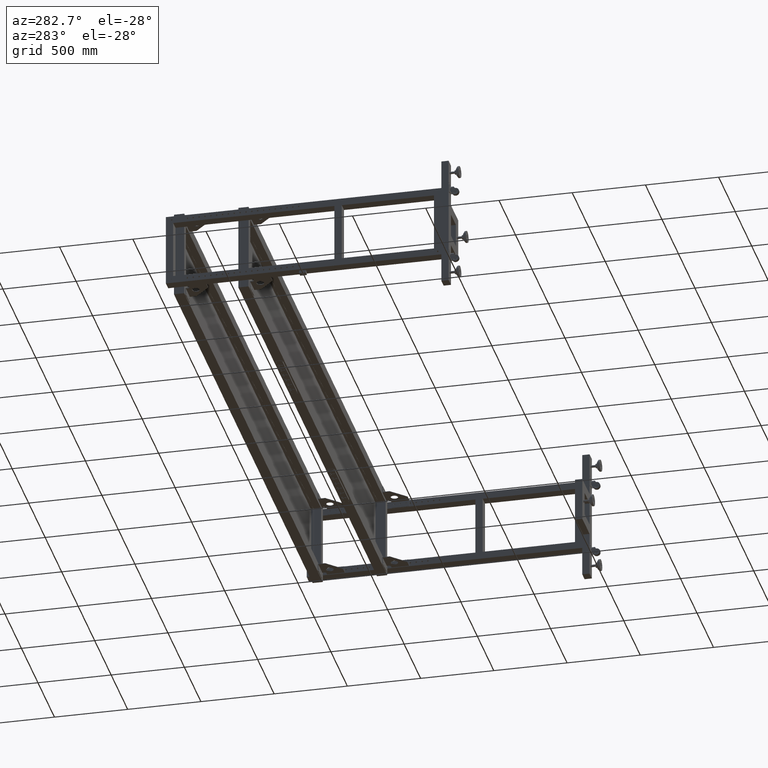
[diagram: clean part render]
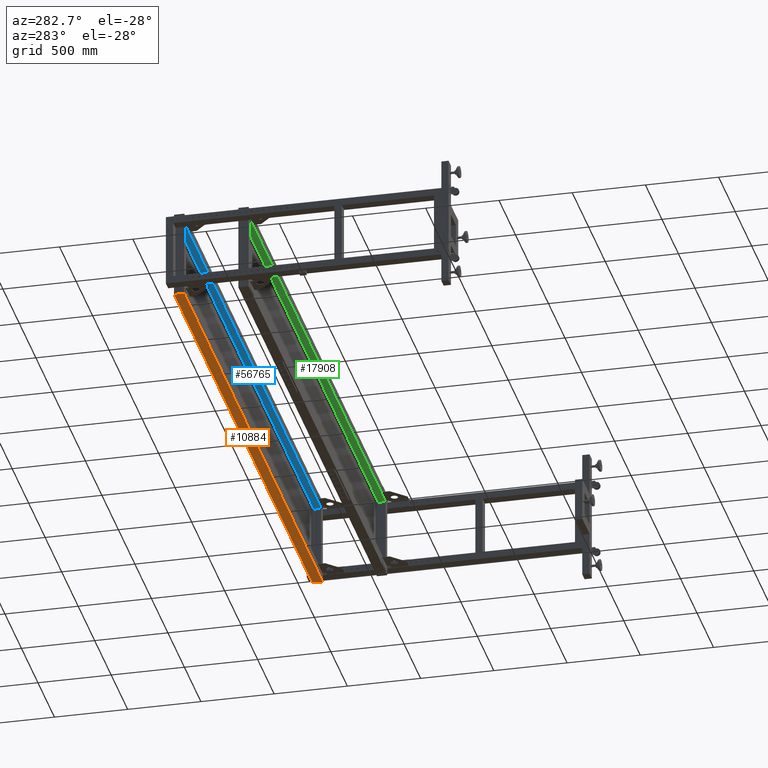
[diagram: same view with three faces highlighted in distinct colors, each labeled with its STEP entity id]
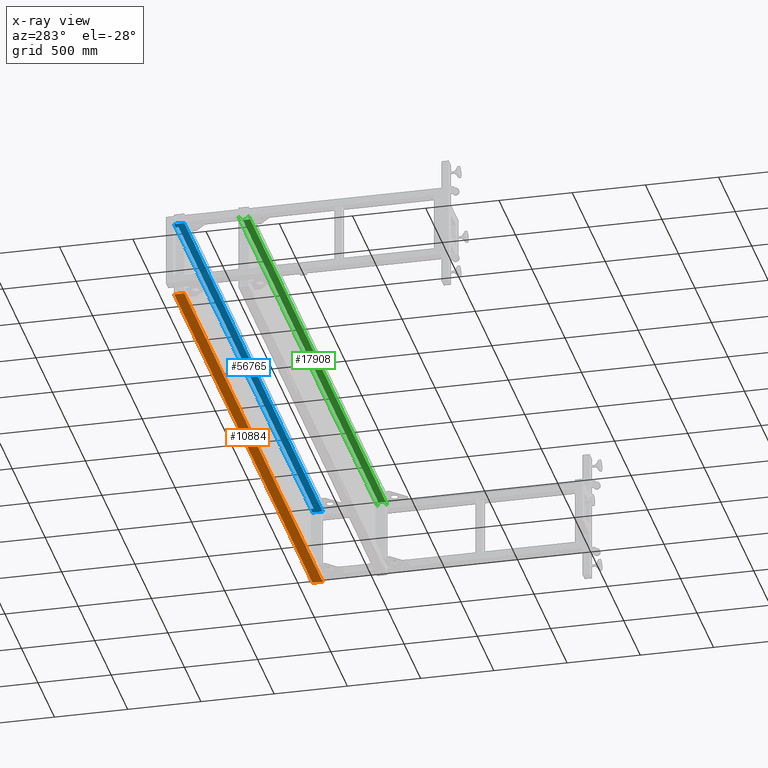
[diagram: x-ray of the same camera — body ghosted, the three highlighted faces saturated]
A machine part, auxiliary view with three faces highlighted in distinct colors.
The next image is the same camera in x-ray (body ghosted, the three faces saturated) — at least one of them is partly hidden behind the body in this view.
Their STEP definitions:

[orange] entity #10884 — the highlighted planar face has unit normal (-0, -0, 1).
#315 = ORIENTED_EDGE ( 'NONE', *, *, #31586, .T. ) ;
#1414 = VERTEX_POINT ( 'NONE', #17233 ) ;
#2426 = CARTESIAN_POINT ( 'NONE',  ( -266.1724874371840883, 926.9410804020149044, -299.9999999999991473 ) ) ;
#3932 = ORIENTED_EDGE ( 'NONE', *, *, #64072, .F. ) ;
#4368 = VECTOR ( 'NONE', #27092, 1000.000000000000000 ) ;
#8116 = ORIENTED_EDGE ( 'NONE', *, *, #64525, .F. ) ;
#10884 = ADVANCED_FACE ( 'NONE', ( #11968 ), #17709, .F. ) ;
#11968 = FACE_OUTER_BOUND ( 'NONE', #68940, .T. ) ;
#15548 = DIRECTION ( 'NONE',  ( 3.450989802914125775E-16, -1.000000000000000000, -3.603491776919587486E-15 ) ) ;
#17233 = CARTESIAN_POINT ( 'NONE',  ( 2929.827512562815627, 996.9410804020147907, -299.9999999999988631 ) ) ;
#17709 = PLANE ( 'NONE',  #74935 ) ;
#19301 = DIRECTION ( 'NONE',  ( 1.000000000000000000, -1.092267369640097868E-16, 0.000000000000000000 ) ) ;
#23468 = CARTESIAN_POINT ( 'NONE',  ( -266.1724874371840883, 926.9410804020149044, -299.9999999999991473 ) ) ;
#26250 = LINE ( 'NONE', #38938, #76976 ) ;
#27092 = DIRECTION ( 'NONE',  ( 0.000000000000000000, -1.000000000000000000, -3.603491776919587486E-15 ) ) ;
#27393 = DIRECTION ( 'NONE',  ( 1.000000000000000000, -1.092267369640097868E-16, 0.000000000000000000 ) ) ;
#28137 = VERTEX_POINT ( 'NONE', #71413 ) ;
#31586 = EDGE_CURVE ( 'NONE', #70998, #1414, #26250, .T. ) ;
#32226 = VECTOR ( 'NONE', #15548, 1000.000000000000000 ) ;
#36375 = CARTESIAN_POINT ( 'NONE',  ( 2929.827512562816082, 926.9410804020149044, -299.9999999999991473 ) ) ;
#38474 = VECTOR ( 'NONE', #27393, 1000.000000000000000 ) ;
#38938 = CARTESIAN_POINT ( 'NONE',  ( -266.1724874371843157, 996.9410804020147907, -299.9999999999988631 ) ) ;
#42264 = DIRECTION ( 'NONE',  ( 1.092267369640097868E-16, 1.000000000000000000, 3.603491776919587486E-15 ) ) ;
#44754 = ORIENTED_EDGE ( 'NONE', *, *, #67827, .T. ) ;
#51498 = VERTEX_POINT ( 'NONE', #36375 ) ;
#55918 = CARTESIAN_POINT ( 'NONE',  ( -1266.172487437185964, 996.9410804020139949, -299.9999999999988631 ) ) ;
#58065 = LINE ( 'NONE', #2426, #38474 ) ;
#60933 = LINE ( 'NONE', #79366, #32226 ) ;
#63920 = LINE ( 'NONE', #77393, #4368 ) ;
#64072 = EDGE_CURVE ( 'NONE', #70998, #28137, #63920, .T. ) ;
#64525 = EDGE_CURVE ( 'NONE', #28137, #51498, #58065, .T. ) ;
#67827 = EDGE_CURVE ( 'NONE', #1414, #51498, #60933, .T. ) ;
#68940 = EDGE_LOOP ( 'NONE', ( #8116, #3932, #315, #44754 ) ) ;
#70998 = VERTEX_POINT ( 'NONE', #55918 ) ;
#71413 = CARTESIAN_POINT ( 'NONE',  ( -1266.172487437185964, 926.9410804020142223, -299.9999999999991473 ) ) ;
#73379 = DIRECTION ( 'NONE',  ( -3.935976484695678884E-31, -3.603491776919587486E-15, 1.000000000000000000 ) ) ;
#74935 = AXIS2_PLACEMENT_3D ( 'NONE', #23468, #73379, #42264 ) ;
#76976 = VECTOR ( 'NONE', #19301, 1000.000000000000000 ) ;
#77393 = CARTESIAN_POINT ( 'NONE',  ( -1266.172487437185964, 926.9410804020142223, -299.9999999999991473 ) ) ;
#79366 = CARTESIAN_POINT ( 'NONE',  ( 2929.827512562816082, 926.9410804020149044, -299.9999999999991473 ) ) ;

[blue] entity #56765 — the highlighted planar face has unit normal (-0, -0, 1).
#52 = LINE ( 'NONE', #25013, #50451 ) ;
#577 = VERTEX_POINT ( 'NONE', #31020 ) ;
#1399 = DIRECTION ( 'NONE',  ( 1.000000000000000000, -1.092267369640097868E-16, 0.000000000000000000 ) ) ;
#1886 = VECTOR ( 'NONE', #71761, 1000.000000000000000 ) ;
#3062 = CARTESIAN_POINT ( 'NONE',  ( -1266.172487437185964, 926.9410804020119485, 230.0000000000009379 ) ) ;
#4103 = CARTESIAN_POINT ( 'NONE',  ( 2880.256801884697779, 995.4310804020133219, 230.0000000000011653 ) ) ;
#4693 = EDGE_CURVE ( 'NONE', #47586, #577, #59948, .T. ) ;
#8214 = ORIENTED_EDGE ( 'NONE', *, *, #9551, .F. ) ;
#9551 = EDGE_CURVE ( 'NONE', #80449, #72076, #60272, .T. ) ;
#13750 = EDGE_CURVE ( 'NONE', #80449, #53756, #34143, .T. ) ;
#14254 = PLANE ( 'NONE',  #60380 ) ;
#14883 = LINE ( 'NONE', #46001, #58522 ) ;
#15909 = CARTESIAN_POINT ( 'NONE',  ( 2929.827512562816082, 926.9410804020127443, 230.0000000000009379 ) ) ;
#17665 = DIRECTION ( 'NONE',  ( -3.935976484695678884E-31, -3.603491776919587486E-15, 1.000000000000000000 ) ) ;
#17868 = VECTOR ( 'NONE', #25476, 1000.000000000000000 ) ;
#18131 = LINE ( 'NONE', #68859, #17868 ) ;
#18743 = DIRECTION ( 'NONE',  ( 1.000000000000000000, -1.092267369640097868E-16, 0.000000000000000000 ) ) ;
#18957 = CARTESIAN_POINT ( 'NONE',  ( 2880.256801884697779, 995.4410804020141086, 230.0000000000011653 ) ) ;
#19062 = VECTOR ( 'NONE', #21912, 1000.000000000000000 ) ;
#20330 = ORIENTED_EDGE ( 'NONE', *, *, #38115, .F. ) ;
#21912 = DIRECTION ( 'NONE',  ( 0.000000000000000000, -1.000000000000000000, -3.603491776919587486E-15 ) ) ;
#22775 = VERTEX_POINT ( 'NONE', #76245 ) ;
#22970 = EDGE_CURVE ( 'NONE', #22775, #42863, #52, .T. ) ;
#23700 = VECTOR ( 'NONE', #30439, 1000.000000000000000 ) ;
#24215 = VECTOR ( 'NONE', #45633, 1000.000000000000000 ) ;
#25013 = CARTESIAN_POINT ( 'NONE',  ( 2929.827512562816082, 926.9410804020127443, 230.0000000000009379 ) ) ;
#25476 = DIRECTION ( 'NONE',  ( 1.000000000000000000, -1.092267369640097868E-16, 0.000000000000000000 ) ) ;
#26835 = ORIENTED_EDGE ( 'NONE', *, *, #22970, .T. ) ;
#29948 = DIRECTION ( 'NONE',  ( 3.450989802914125775E-16, -1.000000000000000000, -3.603491776919587486E-15 ) ) ;
#30439 = DIRECTION ( 'NONE',  ( 3.450989802914125775E-16, -1.000000000000000000, 2.000602769257179879E-15 ) ) ;
#31020 = CARTESIAN_POINT ( 'NONE',  ( -1266.172487437185964, 926.9410804020119485, 230.0000000000009379 ) ) ;
#32251 = LINE ( 'NONE', #64159, #44270 ) ;
#32267 = CARTESIAN_POINT ( 'NONE',  ( -266.1724874371840883, 926.9410804020127443, 230.0000000000009379 ) ) ;
#34143 = LINE ( 'NONE', #45216, #24215 ) ;
#36928 = EDGE_CURVE ( 'NONE', #53756, #47195, #14883, .T. ) ;
#38115 = EDGE_CURVE ( 'NONE', #577, #42863, #32251, .T. ) ;
#39984 = CARTESIAN_POINT ( 'NONE',  ( -1216.601776759067889, 995.4310804020125261, 230.0000000000011653 ) ) ;
#42863 = VERTEX_POINT ( 'NONE', #15909 ) ;
#43418 = DIRECTION ( 'NONE',  ( 1.092267369640097868E-16, 1.000000000000000000, 3.603491776919587486E-15 ) ) ;
#44270 = VECTOR ( 'NONE', #18743, 1000.000000000000000 ) ;
#45216 = CARTESIAN_POINT ( 'NONE',  ( -1216.601776759067889, 995.4410804020133128, 230.0000000000011653 ) ) ;
#45633 = DIRECTION ( 'NONE',  ( 0.000000000000000000, -1.000000000000000000, 2.000602769257179879E-15 ) ) ;
#46001 = CARTESIAN_POINT ( 'NONE',  ( 981.8275125628155138, 976.9410804020133128, 230.0000000000011369 ) ) ;
#47195 = VERTEX_POINT ( 'NONE', #66433 ) ;
#47586 = VERTEX_POINT ( 'NONE', #71960 ) ;
#48352 = ORIENTED_EDGE ( 'NONE', *, *, #4693, .F. ) ;
#50451 = VECTOR ( 'NONE', #29948, 1000.000000000000000 ) ;
#53756 = VERTEX_POINT ( 'NONE', #55681 ) ;
#55681 = CARTESIAN_POINT ( 'NONE',  ( -1216.601776759067889, 976.9410804020126307, 230.0000000000011084 ) ) ;
#55712 = FACE_OUTER_BOUND ( 'NONE', #70722, .T. ) ;
#56348 = EDGE_CURVE ( 'NONE', #72076, #47195, #61946, .T. ) ;
#56765 = ADVANCED_FACE ( 'NONE', ( #55712, #70327 ), #14254, .F. ) ;
#58522 = VECTOR ( 'NONE', #1399, 1000.000000000000000 ) ;
#59948 = LINE ( 'NONE', #3062, #19062 ) ;
#60272 = LINE ( 'NONE', #71357, #1886 ) ;
#60380 = AXIS2_PLACEMENT_3D ( 'NONE', #32267, #17665, #43418 ) ;
#61946 = LINE ( 'NONE', #18957, #23700 ) ;
#64159 = CARTESIAN_POINT ( 'NONE',  ( -266.1724874371840883, 926.9410804020127443, 230.0000000000009379 ) ) ;
#64421 = EDGE_LOOP ( 'NONE', ( #8214, #71801, #75266, #74825 ) ) ;
#66433 = CARTESIAN_POINT ( 'NONE',  ( 2880.256801884697779, 976.9410804020134265, 230.0000000000011084 ) ) ;
#68859 = CARTESIAN_POINT ( 'NONE',  ( -266.1724874371843157, 996.9410804020127443, 230.0000000000011653 ) ) ;
#70327 = FACE_BOUND ( 'NONE', #64421, .T. ) ;
#70722 = EDGE_LOOP ( 'NONE', ( #20330, #48352, #72558, #26835 ) ) ;
#71357 = CARTESIAN_POINT ( 'NONE',  ( 2181.827512562815627, 995.4310804020130945, 230.0000000000011653 ) ) ;
#71761 = DIRECTION ( 'NONE',  ( 1.000000000000000000, -8.609709061765234248E-17, -4.627323453246184469E-32 ) ) ;
#71801 = ORIENTED_EDGE ( 'NONE', *, *, #13750, .T. ) ;
#71960 = CARTESIAN_POINT ( 'NONE',  ( -1266.172487437185964, 996.9410804020120622, 230.0000000000011653 ) ) ;
#72076 = VERTEX_POINT ( 'NONE', #4103 ) ;
#72558 = ORIENTED_EDGE ( 'NONE', *, *, #78334, .T. ) ;
#74825 = ORIENTED_EDGE ( 'NONE', *, *, #56348, .F. ) ;
#75266 = ORIENTED_EDGE ( 'NONE', *, *, #36928, .T. ) ;
#76245 = CARTESIAN_POINT ( 'NONE',  ( 2929.827512562815627, 996.9410804020127443, 230.0000000000011653 ) ) ;
#78334 = EDGE_CURVE ( 'NONE', #47586, #22775, #18131, .T. ) ;
#80449 = VERTEX_POINT ( 'NONE', #39984 ) ;

[green] entity #17908 — the highlighted planar face has unit normal (-0, -0, 1).
#78 = VECTOR ( 'NONE', #22481, 1000.000000000000000 ) ;
#292 = CARTESIAN_POINT ( 'NONE',  ( -1267.172487437185964, 491.9410804020110390, 229.9999999999998579 ) ) ;
#838 = CARTESIAN_POINT ( 'NONE',  ( -1221.172487437186192, 491.9410804020110390, 229.9999999999998579 ) ) ;
#2171 = VECTOR ( 'NONE', #9079, 1000.000000000000000 ) ;
#2226 = DIRECTION ( 'NONE',  ( -1.000000000000000000, -0.000000000000000000, 0.000000000000000000 ) ) ;
#2847 = CARTESIAN_POINT ( 'NONE',  ( 2930.827512562816082, 551.9410804020118348, 230.0000000000000568 ) ) ;
#3545 = DIRECTION ( 'NONE',  ( 0.000000000000000000, 1.000000000000000000, 3.396508223080412663E-15 ) ) ;
#3743 = CARTESIAN_POINT ( 'NONE',  ( 2929.827512562816082, 556.9410804020117212, 230.0000000000000853 ) ) ;
#4118 = VECTOR ( 'NONE', #10404, 1000.000000000000000 ) ;
#4691 = EDGE_CURVE ( 'NONE', #28072, #23482, #71428, .T. ) ;
#4814 = CARTESIAN_POINT ( 'NONE',  ( -1266.172487437185964, 556.9410804020109254, 230.0000000000000853 ) ) ;
#6005 = VECTOR ( 'NONE', #34182, 1000.000000000000000 ) ;
#6458 = LINE ( 'NONE', #25674, #4118 ) ;
#7673 = ORIENTED_EDGE ( 'NONE', *, *, #76103, .T. ) ;
#8419 = CARTESIAN_POINT ( 'NONE',  ( 2929.827512562816082, 556.9410804020117212, 230.0000000000000853 ) ) ;
#9079 = DIRECTION ( 'NONE',  ( -3.450989802914125775E-16, 1.000000000000000000, 3.396508223080412663E-15 ) ) ;
#9226 = CARTESIAN_POINT ( 'NONE',  ( 2229.827512562815627, 486.9410804020114938, 229.9999999999998295 ) ) ;
#9332 = VERTEX_POINT ( 'NONE', #36608 ) ;
#10404 = DIRECTION ( 'NONE',  ( 4.607472120232001938E-16, -1.000000000000000000, -3.396508223080412663E-15 ) ) ;
#11419 = EDGE_CURVE ( 'NONE', #79275, #43061, #34024, .T. ) ;
#11577 = ORIENTED_EDGE ( 'NONE', *, *, #53918, .F. ) ;
#11784 = VECTOR ( 'NONE', #63025, 1000.000000000000000 ) ;
#13399 = VERTEX_POINT ( 'NONE', #45318 ) ;
#13911 = VECTOR ( 'NONE', #41403, 1000.000000000000000 ) ;
#16054 = ORIENTED_EDGE ( 'NONE', *, *, #21923, .F. ) ;
#16150 = EDGE_CURVE ( 'NONE', #58685, #69866, #80072, .T. ) ;
#16614 = ORIENTED_EDGE ( 'NONE', *, *, #67426, .F. ) ;
#17677 = CARTESIAN_POINT ( 'NONE',  ( -1216.601776759067889, 555.4310804020128671, 230.0000000000001137 ) ) ;
#17687 = CARTESIAN_POINT ( 'NONE',  ( 2884.827512562816082, 491.9410804020117780, 229.9999999999998579 ) ) ;
#17908 = ADVANCED_FACE ( 'NONE', ( #68511, #80800 ), #37409, .F. ) ;
#19430 = CARTESIAN_POINT ( 'NONE',  ( -1221.172487437186192, 491.9410804020110390, 229.9999999999998579 ) ) ;
#20768 = CARTESIAN_POINT ( 'NONE',  ( -1216.601776759067889, 536.9410804020129717, 230.0000000000000284 ) ) ;
#20940 = CARTESIAN_POINT ( 'NONE',  ( 981.8275125628157411, 536.9410804020136538, 230.0000000000001421 ) ) ;
#21923 = EDGE_CURVE ( 'NONE', #71666, #13399, #73295, .T. ) ;
#22481 = DIRECTION ( 'NONE',  ( -1.000000000000000000, -4.016660501602214938E-16, -1.864484265141417748E-31 ) ) ;
#22680 = DIRECTION ( 'NONE',  ( 3.450989802914125775E-16, -1.000000000000000000, 4.000602769257180823E-15 ) ) ;
#23405 = LINE ( 'NONE', #36068, #42620 ) ;
#23482 = VERTEX_POINT ( 'NONE', #63779 ) ;
#24503 = VECTOR ( 'NONE', #29761, 1000.000000000000000 ) ;
#25239 = ORIENTED_EDGE ( 'NONE', *, *, #27434, .T. ) ;
#25674 = CARTESIAN_POINT ( 'NONE',  ( 2884.827512562816082, 491.9410804020117780, 229.9999999999998579 ) ) ;
#27434 = EDGE_CURVE ( 'NONE', #38167, #49708, #40092, .T. ) ;
#28072 = VERTEX_POINT ( 'NONE', #50151 ) ;
#28152 = DIRECTION ( 'NONE',  ( 0.000000000000000000, 1.000000000000000000, 3.396508223080412663E-15 ) ) ;
#28415 = VERTEX_POINT ( 'NONE', #50050 ) ;
#29761 = DIRECTION ( 'NONE',  ( 1.000000000000000000, 3.450989802914125775E-16, 0.000000000000000000 ) ) ;
#30462 = CARTESIAN_POINT ( 'NONE',  ( 2229.827512562815627, 556.9410804020114938, 230.0000000000000853 ) ) ;
#30553 = EDGE_CURVE ( 'NONE', #23482, #28415, #42441, .T. ) ;
#30617 = ORIENTED_EDGE ( 'NONE', *, *, #33819, .T. ) ;
#31717 = VECTOR ( 'NONE', #3545, 1000.000000000000000 ) ;
#33365 = CARTESIAN_POINT ( 'NONE',  ( -1216.601776759067889, 555.4410804020136538, 230.0000000000001137 ) ) ;
#33819 = EDGE_CURVE ( 'NONE', #49708, #58685, #6458, .T. ) ;
#34024 = LINE ( 'NONE', #20940, #67177 ) ;
#34182 = DIRECTION ( 'NONE',  ( -1.000000000000000000, 1.092267369640097868E-16, 0.000000000000000000 ) ) ;
#34846 = DIRECTION ( 'NONE',  ( -1.000000000000000000, 1.092267369640097868E-16, 0.000000000000000000 ) ) ;
#36068 = CARTESIAN_POINT ( 'NONE',  ( -1267.172487437185964, 551.9410804020110390, 230.0000000000000568 ) ) ;
#36608 = CARTESIAN_POINT ( 'NONE',  ( -1266.172487437185964, 551.9410804020110390, 230.0000000000000568 ) ) ;
#37409 = PLANE ( 'NONE',  #47699 ) ;
#37538 = LINE ( 'NONE', #292, #37546 ) ;
#37546 = VECTOR ( 'NONE', #2226, 1000.000000000000000 ) ;
#37822 = DIRECTION ( 'NONE',  ( -3.709895102785004465E-31, -3.396508223080412663E-15, 1.000000000000000000 ) ) ;
#38167 = VERTEX_POINT ( 'NONE', #38796 ) ;
#38276 = CARTESIAN_POINT ( 'NONE',  ( 2929.827512562816082, 491.9410804020117780, 229.9999999999998579 ) ) ;
#38796 = CARTESIAN_POINT ( 'NONE',  ( 2929.827512562816082, 551.9410804020118348, 230.0000000000000568 ) ) ;
#38984 = CARTESIAN_POINT ( 'NONE',  ( -1266.172487437185964, 556.9410804020109254, 230.0000000000000853 ) ) ;
#39091 = LINE ( 'NONE', #33365, #45039 ) ;
#39870 = EDGE_CURVE ( 'NONE', #28072, #69866, #71839, .T. ) ;
#40092 = LINE ( 'NONE', #2847, #78 ) ;
#40378 = CARTESIAN_POINT ( 'NONE',  ( -1266.172487437185964, 556.9410804020109254, 230.0000000000000853 ) ) ;
#40995 = DIRECTION ( 'NONE',  ( 1.000000000000000000, -5.656706986880889162E-17, -1.864484265141417748E-31 ) ) ;
#41102 = LINE ( 'NONE', #59923, #51932 ) ;
#41403 = DIRECTION ( 'NONE',  ( 1.000000000000000000, -8.609709061765234248E-17, -9.253252722517677530E-32 ) ) ;
#42441 = LINE ( 'NONE', #4814, #60636 ) ;
#42620 = VECTOR ( 'NONE', #40995, 1000.000000000000000 ) ;
#43061 = VERTEX_POINT ( 'NONE', #68230 ) ;
#43137 = EDGE_CURVE ( 'NONE', #65438, #28415, #37538, .T. ) ;
#44374 = ORIENTED_EDGE ( 'NONE', *, *, #16150, .T. ) ;
#45039 = VECTOR ( 'NONE', #51369, 1000.000000000000000 ) ;
#45318 = CARTESIAN_POINT ( 'NONE',  ( 2880.256801884698234, 555.4310804020136629, 230.0000000000001137 ) ) ;
#45508 = ORIENTED_EDGE ( 'NONE', *, *, #43137, .F. ) ;
#46016 = ORIENTED_EDGE ( 'NONE', *, *, #67027, .F. ) ;
#46329 = CARTESIAN_POINT ( 'NONE',  ( 2884.827512562816082, 551.9410804020118348, 230.0000000000000568 ) ) ;
#46721 = DIRECTION ( 'NONE',  ( 1.000000000000000000, -1.092267369640097868E-16, 0.000000000000000000 ) ) ;
#47699 = AXIS2_PLACEMENT_3D ( 'NONE', #30462, #37822, #57028 ) ;
#48690 = EDGE_LOOP ( 'NONE', ( #16054, #7673, #56512, #46016 ) ) ;
#48754 = EDGE_CURVE ( 'NONE', #38167, #58555, #71680, .T. ) ;
#49708 = VERTEX_POINT ( 'NONE', #46329 ) ;
#50050 = CARTESIAN_POINT ( 'NONE',  ( -1266.172487437185964, 491.9410804020110390, 229.9999999999998579 ) ) ;
#50151 = CARTESIAN_POINT ( 'NONE',  ( 2929.827512562816082, 486.9410804020117780, 229.9999999999998295 ) ) ;
#50164 = ORIENTED_EDGE ( 'NONE', *, *, #73352, .T. ) ;
#51369 = DIRECTION ( 'NONE',  ( 0.000000000000000000, -1.000000000000000000, 4.000602769257180823E-15 ) ) ;
#51932 = VECTOR ( 'NONE', #22680, 1000.000000000000000 ) ;
#52588 = EDGE_LOOP ( 'NONE', ( #74722, #66725, #45508, #11577, #16614, #50164, #74864, #62941, #25239, #30617, #44374, #60088 ) ) ;
#53256 = CARTESIAN_POINT ( 'NONE',  ( 2229.827512562815627, 556.9410804020114938, 230.0000000000000853 ) ) ;
#53525 = VERTEX_POINT ( 'NONE', #38984 ) ;
#53918 = EDGE_CURVE ( 'NONE', #76265, #65438, #62229, .T. ) ;
#56512 = ORIENTED_EDGE ( 'NONE', *, *, #11419, .T. ) ;
#57028 = DIRECTION ( 'NONE',  ( -1.092267369640097868E-16, -1.000000000000000000, -3.396508223080412663E-15 ) ) ;
#58555 = VERTEX_POINT ( 'NONE', #71351 ) ;
#58685 = VERTEX_POINT ( 'NONE', #17687 ) ;
#59923 = CARTESIAN_POINT ( 'NONE',  ( 2880.256801884698234, 555.4410804020144496, 230.0000000000001137 ) ) ;
#60088 = ORIENTED_EDGE ( 'NONE', *, *, #39870, .F. ) ;
#60636 = VECTOR ( 'NONE', #28152, 1000.000000000000000 ) ;
#62210 = VECTOR ( 'NONE', #34846, 1000.000000000000000 ) ;
#62229 = LINE ( 'NONE', #838, #11784 ) ;
#62941 = ORIENTED_EDGE ( 'NONE', *, *, #48754, .F. ) ;
#63025 = DIRECTION ( 'NONE',  ( -1.156482317317875916E-16, -1.000000000000000000, -3.396508223080412663E-15 ) ) ;
#63779 = CARTESIAN_POINT ( 'NONE',  ( -1266.172487437185964, 486.9410804020109822, 229.9999999999998295 ) ) ;
#64883 = DIRECTION ( 'NONE',  ( -3.450989802914125775E-16, 1.000000000000000000, 3.396508223080412663E-15 ) ) ;
#65438 = VERTEX_POINT ( 'NONE', #19430 ) ;
#65791 = CARTESIAN_POINT ( 'NONE',  ( 2930.827512562816082, 491.9410804020117780, 229.9999999999998579 ) ) ;
#65945 = LINE ( 'NONE', #53256, #62210 ) ;
#66725 = ORIENTED_EDGE ( 'NONE', *, *, #30553, .T. ) ;
#67027 = EDGE_CURVE ( 'NONE', #13399, #43061, #41102, .T. ) ;
#67177 = VECTOR ( 'NONE', #46721, 1000.000000000000000 ) ;
#67426 = EDGE_CURVE ( 'NONE', #9332, #76265, #23405, .T. ) ;
#68230 = CARTESIAN_POINT ( 'NONE',  ( 2880.256801884698234, 536.9410804020137675, 230.0000000000000284 ) ) ;
#68511 = FACE_OUTER_BOUND ( 'NONE', #52588, .T. ) ;
#69866 = VERTEX_POINT ( 'NONE', #38276 ) ;
#71351 = CARTESIAN_POINT ( 'NONE',  ( 2929.827512562816082, 556.9410804020117212, 230.0000000000000853 ) ) ;
#71414 = CARTESIAN_POINT ( 'NONE',  ( -1221.172487437186192, 551.9410804020110390, 230.0000000000000568 ) ) ;
#71428 = LINE ( 'NONE', #9226, #6005 ) ;
#71666 = VERTEX_POINT ( 'NONE', #17677 ) ;
#71680 = LINE ( 'NONE', #3743, #2171 ) ;
#71839 = LINE ( 'NONE', #8419, #78328 ) ;
#71891 = LINE ( 'NONE', #40378, #31717 ) ;
#73295 = LINE ( 'NONE', #79435, #13911 ) ;
#73352 = EDGE_CURVE ( 'NONE', #9332, #53525, #71891, .T. ) ;
#74722 = ORIENTED_EDGE ( 'NONE', *, *, #4691, .T. ) ;
#74864 = ORIENTED_EDGE ( 'NONE', *, *, #77457, .F. ) ;
#76103 = EDGE_CURVE ( 'NONE', #71666, #79275, #39091, .T. ) ;
#76265 = VERTEX_POINT ( 'NONE', #71414 ) ;
#77457 = EDGE_CURVE ( 'NONE', #58555, #53525, #65945, .T. ) ;
#78328 = VECTOR ( 'NONE', #64883, 1000.000000000000000 ) ;
#79275 = VERTEX_POINT ( 'NONE', #20768 ) ;
#79435 = CARTESIAN_POINT ( 'NONE',  ( 2181.827512562815627, 555.4310804020135492, 230.0000000000001137 ) ) ;
#80072 = LINE ( 'NONE', #65791, #24503 ) ;
#80800 = FACE_BOUND ( 'NONE', #48690, .T. ) ;